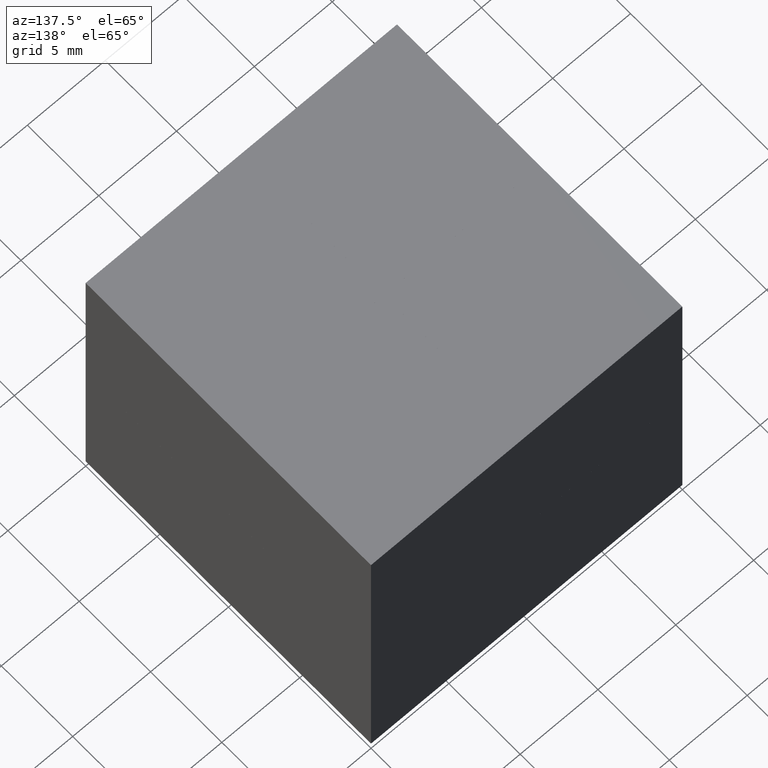
[diagram: clean part render]
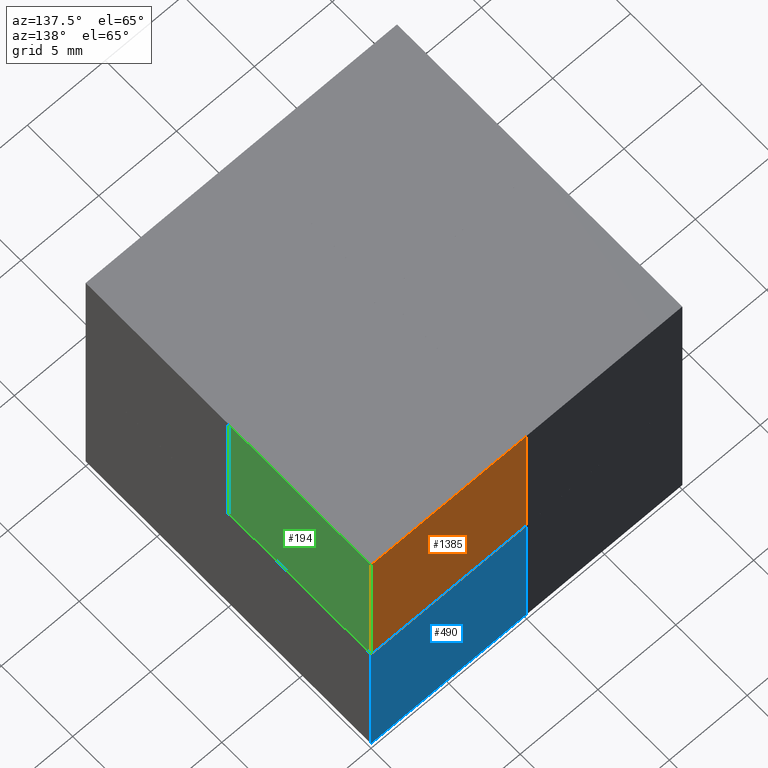
[diagram: same view with three faces highlighted in distinct colors, each labeled with its STEP entity id]
A machine part, auxiliary view with three faces highlighted in distinct colors.
Their STEP definitions:

[orange] entity #1385 — the highlighted planar face has unit normal (0, -1, 0).
#115 = DIRECTION ( 'NONE',  ( -1.000000000000000000, -0.0000000000000000000, -0.0000000000000000000 ) ) ;
#130 = CARTESIAN_POINT ( 'NONE',  ( -10.00000000000000178, 10.00000000000000178, 10.00000000000000000 ) ) ;
#276 = ORIENTED_EDGE ( 'NONE', *, *, #1114, .F. ) ;
#306 = ORIENTED_EDGE ( 'NONE', *, *, #1243, .T. ) ;
#374 = CARTESIAN_POINT ( 'NONE',  ( 0.02000000000000222086, 10.00000000000000178, 0.01999999999999940020 ) ) ;
#405 = FACE_OUTER_BOUND ( 'NONE', #1449, .T. ) ;
#415 = VECTOR ( 'NONE', #1355, 1000.000000000000000 ) ;
#437 = CARTESIAN_POINT ( 'NONE',  ( 0.02000000000000208902, 10.00000000000000178, 0.01999999999999918510 ) ) ;
#464 = CARTESIAN_POINT ( 'NONE',  ( 9.999999999999998224, 10.00000000000000178, 9.999900000000000233 ) ) ;
#478 = EDGE_CURVE ( 'NONE', #717, #833, #1141, .T. ) ;
#483 = CARTESIAN_POINT ( 'NONE',  ( 0.02000000000000799055, 10.00000000000000178, 10.00000000000000000 ) ) ;
#598 = LINE ( 'NONE', #483, #1341 ) ;
#713 = PLANE ( 'NONE',  #1184 ) ;
#717 = VERTEX_POINT ( 'NONE', #464 ) ;
#820 = VECTOR ( 'NONE', #1544, 1000.000000000000000 ) ;
#833 = VERTEX_POINT ( 'NONE', #961 ) ;
#865 = CARTESIAN_POINT ( 'NONE',  ( -10.00000000000000178, 10.00000000000000178, 9.999900000000000233 ) ) ;
#961 = CARTESIAN_POINT ( 'NONE',  ( 0.02000000000000388620, 10.00000000000000178, 9.999900000000002009 ) ) ;
#969 = VERTEX_POINT ( 'NONE', #437 ) ;
#1063 = VERTEX_POINT ( 'NONE', #1309 ) ;
#1070 = DIRECTION ( 'NONE',  ( -5.781551539775844939E-16, 0.0000000000000000000, -1.000000000000000000 ) ) ;
#1096 = LINE ( 'NONE', #374, #415 ) ;
#1114 = EDGE_CURVE ( 'NONE', #833, #969, #598, .T. ) ;
#1141 = LINE ( 'NONE', #865, #1834 ) ;
#1184 = AXIS2_PLACEMENT_3D ( 'NONE', #130, #1594, #1456 ) ;
#1243 = EDGE_CURVE ( 'NONE', #717, #1063, #1253, .T. ) ;
#1253 = LINE ( 'NONE', #1816, #820 ) ;
#1309 = CARTESIAN_POINT ( 'NONE',  ( 9.999955294690314744, 9.999929354983468244, 0.01999999999999883468 ) ) ;
#1341 = VECTOR ( 'NONE', #1070, 1000.000000000000000 ) ;
#1355 = DIRECTION ( 'NONE',  ( 1.000000000000000000, 0.0000000000000000000, -1.228961630885998484E-16 ) ) ;
#1385 = ADVANCED_FACE ( 'NONE', ( #405 ), #713, .F. ) ;
#1449 = EDGE_LOOP ( 'NONE', ( #1763, #306, #1623, #276 ) ) ;
#1456 = DIRECTION ( 'NONE',  ( 0.0000000000000000000, -0.0000000000000000000, -1.000000000000000000 ) ) ;
#1544 = DIRECTION ( 'NONE',  ( -0.0000000000000000000, -0.0000000000000000000, -1.000000000000000000 ) ) ;
#1594 = DIRECTION ( 'NONE',  ( 0.0000000000000000000, -1.000000000000000000, 0.0000000000000000000 ) ) ;
#1623 = ORIENTED_EDGE ( 'NONE', *, *, #1752, .F. ) ;
#1752 = EDGE_CURVE ( 'NONE', #969, #1063, #1096, .T. ) ;
#1763 = ORIENTED_EDGE ( 'NONE', *, *, #478, .F. ) ;
#1816 = CARTESIAN_POINT ( 'NONE',  ( 9.999999999999998224, 10.00000000000000178, 10.00000000000000000 ) ) ;
#1834 = VECTOR ( 'NONE', #115, 1000.000000000000000 ) ;

[blue] entity #490 — the highlighted planar face has unit normal (0, -1, 0).
#121 = LINE ( 'NONE', #1303, #469 ) ;
#216 = VERTEX_POINT ( 'NONE', #947 ) ;
#233 = DIRECTION ( 'NONE',  ( -1.000000000000000000, 0.0000000000000000000, -1.840047524696714678E-16 ) ) ;
#236 = AXIS2_PLACEMENT_3D ( 'NONE', #1000, #708, #572 ) ;
#279 = EDGE_CURVE ( 'NONE', #216, #1437, #1231, .T. ) ;
#287 = VECTOR ( 'NONE', #1378, 1000.000000000000000 ) ;
#307 = CARTESIAN_POINT ( 'NONE',  ( 0.02000000000000622460, 9.999952480423065282, -9.999926634894455546 ) ) ;
#333 = EDGE_CURVE ( 'NONE', #1437, #1101, #968, .T. ) ;
#358 = EDGE_CURVE ( 'NONE', #1490, #1101, #121, .T. ) ;
#420 = EDGE_CURVE ( 'NONE', #216, #1490, #557, .T. ) ;
#436 = VECTOR ( 'NONE', #1134, 1000.000000000000000 ) ;
#469 = VECTOR ( 'NONE', #1722, 1000.000000000000000 ) ;
#490 = ADVANCED_FACE ( 'NONE', ( #715 ), #563, .F. ) ;
#534 = ORIENTED_EDGE ( 'NONE', *, *, #279, .F. ) ;
#557 = LINE ( 'NONE', #1455, #436 ) ;
#563 = PLANE ( 'NONE',  #236 ) ;
#568 = CARTESIAN_POINT ( 'NONE',  ( 0.01999999999999918510, 10.00000000000000178, -0.01999999999999907754 ) ) ;
#572 = DIRECTION ( 'NONE',  ( 0.0000000000000000000, -0.0000000000000000000, -1.000000000000000000 ) ) ;
#678 = CARTESIAN_POINT ( 'NONE',  ( 0.02000000000000799055, 10.00000000000000178, -10.00000000000000000 ) ) ;
#708 = DIRECTION ( 'NONE',  ( 0.0000000000000000000, -1.000000000000000000, 0.0000000000000000000 ) ) ;
#715 = FACE_OUTER_BOUND ( 'NONE', #1236, .T. ) ;
#947 = CARTESIAN_POINT ( 'NONE',  ( 9.999964812904941880, 9.999914148963872762, -0.02000000000000137085 ) ) ;
#962 = ORIENTED_EDGE ( 'NONE', *, *, #420, .T. ) ;
#968 = LINE ( 'NONE', #678, #287 ) ;
#1000 = CARTESIAN_POINT ( 'NONE',  ( -10.00000000000000178, 10.00000000000000178, 10.00000000000000000 ) ) ;
#1101 = VERTEX_POINT ( 'NONE', #307 ) ;
#1134 = DIRECTION ( 'NONE',  ( -0.0000000000000000000, -0.0000000000000000000, -1.000000000000000000 ) ) ;
#1231 = LINE ( 'NONE', #1240, #1517 ) ;
#1236 = EDGE_LOOP ( 'NONE', ( #1616, #1604, #534, #962 ) ) ;
#1240 = CARTESIAN_POINT ( 'NONE',  ( 0.01999999999999875142, 10.00000000000000178, -0.01999999999999896999 ) ) ;
#1303 = CARTESIAN_POINT ( 'NONE',  ( -10.00000000000000178, 10.00000000000000178, -10.00000000000000000 ) ) ;
#1378 = DIRECTION ( 'NONE',  ( 9.257951291232369801E-16, 0.0000000000000000000, -1.000000000000000000 ) ) ;
#1417 = CARTESIAN_POINT ( 'NONE',  ( 9.999999999999998224, 10.00000000000000178, -10.00000000000000000 ) ) ;
#1437 = VERTEX_POINT ( 'NONE', #568 ) ;
#1455 = CARTESIAN_POINT ( 'NONE',  ( 9.999999999999998224, 10.00000000000000178, 10.00000000000000000 ) ) ;
#1490 = VERTEX_POINT ( 'NONE', #1417 ) ;
#1517 = VECTOR ( 'NONE', #233, 1000.000000000000000 ) ;
#1604 = ORIENTED_EDGE ( 'NONE', *, *, #333, .F. ) ;
#1616 = ORIENTED_EDGE ( 'NONE', *, *, #358, .T. ) ;
#1722 = DIRECTION ( 'NONE',  ( -1.000000000000000000, -0.0000000000000000000, -0.0000000000000000000 ) ) ;

[green] entity #194 — the highlighted planar face has unit normal (-1, -0, 0).
#168 = ORIENTED_EDGE ( 'NONE', *, *, #1243, .F. ) ;
#178 = DIRECTION ( 'NONE',  ( 2.661941115088546368E-32, -1.534504577791357197E-16, 1.000000000000000000 ) ) ;
#194 = ADVANCED_FACE ( 'NONE', ( #1260 ), #1844, .F. ) ;
#206 = LINE ( 'NONE', #1680, #1831 ) ;
#373 = DIRECTION ( 'NONE',  ( 1.734723475976807094E-16, -1.000000000000000000, 0.0000000000000000000 ) ) ;
#378 = ORIENTED_EDGE ( 'NONE', *, *, #1103, .F. ) ;
#464 = CARTESIAN_POINT ( 'NONE',  ( 9.999999999999998224, 10.00000000000000178, 9.999900000000000233 ) ) ;
#529 = CARTESIAN_POINT ( 'NONE',  ( 9.999999999999998224, 10.00000000000000178, 10.00000000000000000 ) ) ;
#548 = CARTESIAN_POINT ( 'NONE',  ( 10.00000000000000178, 0.01999999999999954592, 9.999900000000002009 ) ) ;
#566 = VERTEX_POINT ( 'NONE', #548 ) ;
#717 = VERTEX_POINT ( 'NONE', #464 ) ;
#738 = LINE ( 'NONE', #1050, #1591 ) ;
#820 = VECTOR ( 'NONE', #1544, 1000.000000000000000 ) ;
#843 = VERTEX_POINT ( 'NONE', #1829 ) ;
#853 = CARTESIAN_POINT ( 'NONE',  ( 9.999999999999998224, 10.00000000000000178, 9.999900000000000233 ) ) ;
#970 = DIRECTION ( 'NONE',  ( 1.734723475976807094E-16, -1.000000000000000000, -6.144808154429992421E-17 ) ) ;
#992 = DIRECTION ( 'NONE',  ( -1.734723475976807094E-16, 1.000000000000000000, -0.0000000000000000000 ) ) ;
#1033 = EDGE_CURVE ( 'NONE', #566, #717, #1130, .T. ) ;
#1050 = CARTESIAN_POINT ( 'NONE',  ( 10.00000000000000178, 0.02000000000000091982, 0.01999999999999938979 ) ) ;
#1063 = VERTEX_POINT ( 'NONE', #1309 ) ;
#1103 = EDGE_CURVE ( 'NONE', #843, #566, #738, .T. ) ;
#1115 = DIRECTION ( 'NONE',  ( -1.000000000000000000, -1.734723475976807094E-16, 0.0000000000000000000 ) ) ;
#1130 = LINE ( 'NONE', #853, #1669 ) ;
#1169 = EDGE_LOOP ( 'NONE', ( #1180, #378, #1213, #168 ) ) ;
#1180 = ORIENTED_EDGE ( 'NONE', *, *, #1033, .F. ) ;
#1213 = ORIENTED_EDGE ( 'NONE', *, *, #1283, .F. ) ;
#1243 = EDGE_CURVE ( 'NONE', #717, #1063, #1253, .T. ) ;
#1253 = LINE ( 'NONE', #1816, #820 ) ;
#1260 = FACE_OUTER_BOUND ( 'NONE', #1169, .T. ) ;
#1283 = EDGE_CURVE ( 'NONE', #1063, #843, #206, .T. ) ;
#1309 = CARTESIAN_POINT ( 'NONE',  ( 9.999955294690314744, 9.999929354983468244, 0.01999999999999883468 ) ) ;
#1544 = DIRECTION ( 'NONE',  ( -0.0000000000000000000, -0.0000000000000000000, -1.000000000000000000 ) ) ;
#1591 = VECTOR ( 'NONE', #178, 1000.000000000000000 ) ;
#1669 = VECTOR ( 'NONE', #992, 1000.000000000000000 ) ;
#1680 = CARTESIAN_POINT ( 'NONE',  ( 9.999999999999994671, 10.00000000000000000, 0.02000000000000000042 ) ) ;
#1730 = AXIS2_PLACEMENT_3D ( 'NONE', #529, #1115, #373 ) ;
#1816 = CARTESIAN_POINT ( 'NONE',  ( 9.999999999999998224, 10.00000000000000178, 10.00000000000000000 ) ) ;
#1829 = CARTESIAN_POINT ( 'NONE',  ( 9.999999999999994671, 0.02000000000000091982, 0.01999999999999938979 ) ) ;
#1831 = VECTOR ( 'NONE', #970, 1000.000000000000000 ) ;
#1844 = PLANE ( 'NONE',  #1730 ) ;